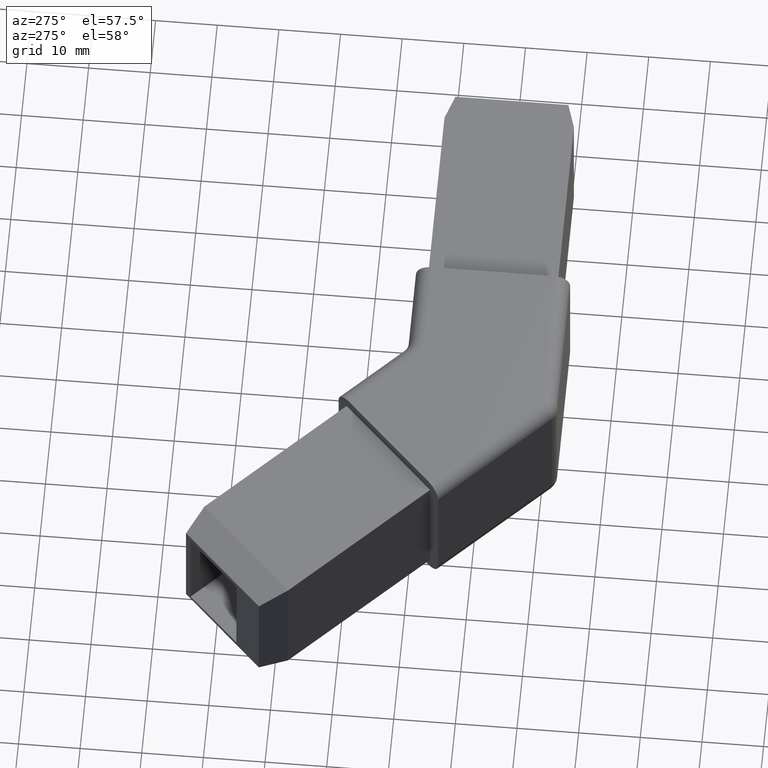
[diagram: clean part render]
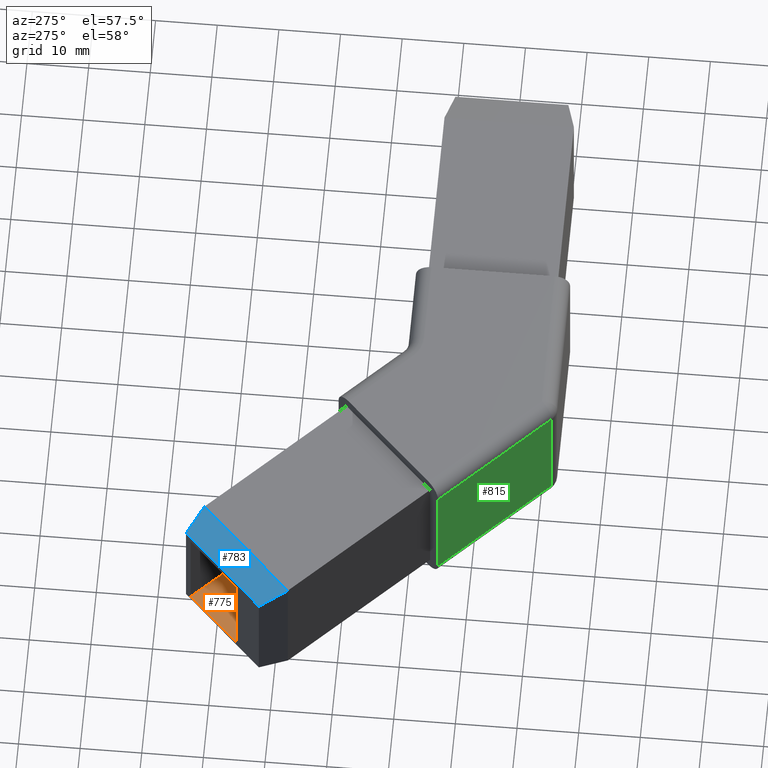
[diagram: same view with three faces highlighted in distinct colors, each labeled with its STEP entity id]
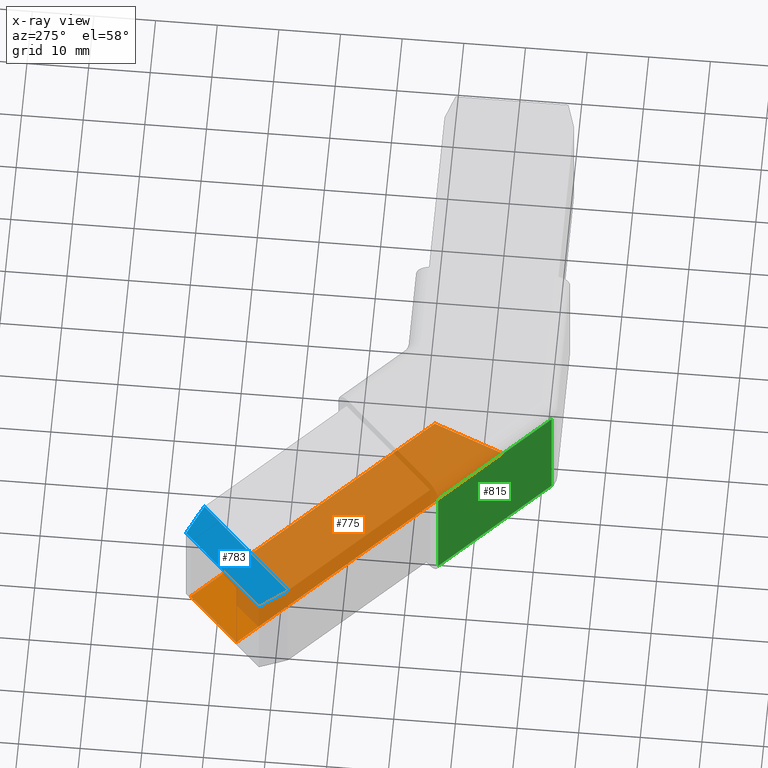
[diagram: x-ray of the same camera — body ghosted, the three highlighted faces saturated]
A machine part, auxiliary view with three faces highlighted in distinct colors.
The next image is the same camera in x-ray (body ghosted, the three faces saturated) — at least one of them is partly hidden behind the body in this view.
Their STEP definitions:

[orange] entity #775 — the highlighted planar face has unit normal (-0, -0, -1).
#57=FACE_OUTER_BOUND('',#105,.T.);
#105=EDGE_LOOP('',(#524,#525,#526,#527));
#157=LINE('',#1151,#247);
#162=LINE('',#1160,#252);
#163=LINE('',#1163,#253);
#164=LINE('',#1164,#254);
#247=VECTOR('',#917,10.);
#252=VECTOR('',#924,10.);
#253=VECTOR('',#927,10.);
#254=VECTOR('',#928,10.);
#337=VERTEX_POINT('',#1148);
#338=VERTEX_POINT('',#1150);
#340=VERTEX_POINT('',#1155);
#342=VERTEX_POINT('',#1162);
#405=EDGE_CURVE('',#338,#337,#157,.T.);
#410=EDGE_CURVE('',#340,#338,#162,.T.);
#411=EDGE_CURVE('',#340,#342,#163,.T.);
#412=EDGE_CURVE('',#337,#342,#164,.T.);
#524=ORIENTED_EDGE('',*,*,#411,.F.);
#525=ORIENTED_EDGE('',*,*,#410,.T.);
#526=ORIENTED_EDGE('',*,*,#405,.T.);
#527=ORIENTED_EDGE('',*,*,#412,.T.);
#741=PLANE('',#843);
#775=ADVANCED_FACE('',(#57),#741,.F.);
#843=AXIS2_PLACEMENT_3D('',#1161,#925,#926);
#917=DIRECTION('',(0.38268343236509,0.923879532511287,-1.11490470540647E-16));
#924=DIRECTION('',(0.707106781186547,-0.707106781186548,0.));
#925=DIRECTION('center_axis',(-8.53311118849878E-17,-8.53311118849877E-17,
-1.));
#926=DIRECTION('ref_axis',(-0.707106781186548,-0.707106781186547,1.20676415720126E-16));
#927=DIRECTION('',(0.707106781186548,0.707106781186547,-1.20676415720126E-16));
#928=DIRECTION('',(-0.707106781186547,0.707106781186548,0.));
#1148=CARTESIAN_POINT('',(3.31370849898476,7.99999999999998,3.99999999999999));
#1150=CARTESIAN_POINT('',(-1.44974746830584,-3.50000000000002,3.99999999999999));
#1151=CARTESIAN_POINT('',(1.29877739326627,3.13552599732699,3.99999999999999));
#1155=CARTESIAN_POINT('',(-41.240588799143,36.2908413308372,3.99999999999999));
#1160=CARTESIAN_POINT('',(-16.4918514576139,11.542103989308,3.99999999999999));
#1161=CARTESIAN_POINT('Origin',(-8.36012347396855,19.6738319729533,3.99999999999999));
#1162=CARTESIAN_POINT('',(-33.1088608154977,44.4225693144825,3.99999999999999));
#1163=CARTESIAN_POINT('',(-35.9372879402439,41.5941421897363,3.99999999999999));
#1164=CARTESIAN_POINT('',(-8.36012347396855,19.6738319729533,3.99999999999999));

[blue] entity #783 — the highlighted planar face has unit normal (-0.183, 0.183, 0.9659).
#65=FACE_OUTER_BOUND('',#114,.T.);
#114=EDGE_LOOP('',(#563,#564,#565,#566));
#177=LINE('',#1191,#267);
#181=LINE('',#1199,#271);
#184=LINE('',#1205,#274);
#185=LINE('',#1206,#275);
#267=VECTOR('',#953,10.);
#271=VECTOR('',#959,10.);
#274=VECTOR('',#964,10.);
#275=VECTOR('',#965,10.);
#349=VERTEX_POINT('',#1189);
#350=VERTEX_POINT('',#1190);
#353=VERTEX_POINT('',#1198);
#355=VERTEX_POINT('',#1204);
#425=EDGE_CURVE('',#349,#350,#177,.T.);
#429=EDGE_CURVE('',#353,#350,#181,.T.);
#432=EDGE_CURVE('',#349,#355,#184,.T.);
#433=EDGE_CURVE('',#353,#355,#185,.T.);
#563=ORIENTED_EDGE('',*,*,#425,.F.);
#564=ORIENTED_EDGE('',*,*,#432,.T.);
#565=ORIENTED_EDGE('',*,*,#433,.F.);
#566=ORIENTED_EDGE('',*,*,#429,.T.);
#749=PLANE('',#851);
#783=ADVANCED_FACE('',(#65),#749,.T.);
#851=AXIS2_PLACEMENT_3D('',#1203,#962,#963);
#953=DIRECTION('',(-0.484050172943188,0.838399492950102,-0.250562807085731));
#959=DIRECTION('',(-0.707106781186548,-0.707106781186547,0.));
#962=DIRECTION('center_axis',(-0.183012701892219,0.183012701892219,0.965925826289068));
#963=DIRECTION('ref_axis',(0.982520050848698,0.,0.186156787897385));
#964=DIRECTION('',(0.707106781186548,0.707106781186547,0.));
#965=DIRECTION('',(0.838399492950101,-0.48405017294319,0.250562807085731));
#1189=CARTESIAN_POINT('',(-42.6548023615161,27.8055599565986,23.));
#1190=CARTESIAN_POINT('',(-45.2429928125413,32.2884373174389,21.6602540378444));
#1191=CARTESIAN_POINT('',(-45.1411442486272,32.1120304300617,21.712974733959));
#1198=CARTESIAN_POINT('',(-32.2884373174388,45.2429928125413,21.6602540378444));
#1199=CARTESIAN_POINT('',(-42.4780256662194,35.0534044637607,21.6602540378444));
#1203=CARTESIAN_POINT('Origin',(-40.7102587132531,33.2856375107944,22.3301270189222));
#1204=CARTESIAN_POINT('',(-27.8055599565986,42.6548023615161,23.));
#1205=CARTESIAN_POINT('',(-38.9424917602867,31.517870557828,23.));
#1206=CARTESIAN_POINT('',(-32.1120304300616,45.1411442486272,21.712974733959));

[green] entity #815 — the highlighted planar face has unit normal (-0.7071, -0.7071, 0).
#97=FACE_OUTER_BOUND('',#149,.T.);
#149=EDGE_LOOP('',(#715,#716,#717,#718));
#228=LINE('',#1322,#318);
#239=LINE('',#1356,#329);
#240=LINE('',#1360,#330);
#243=LINE('',#1365,#333);
#318=VECTOR('',#1078,10.);
#329=VECTOR('',#1119,10.);
#330=VECTOR('',#1126,10.);
#333=VECTOR('',#1131,10.);
#392=VERTEX_POINT('',#1319);
#393=VERTEX_POINT('',#1321);
#400=VERTEX_POINT('',#1352);
#401=VERTEX_POINT('',#1354);
#489=EDGE_CURVE('',#392,#393,#228,.T.);
#508=EDGE_CURVE('',#401,#400,#239,.T.);
#510=EDGE_CURVE('',#400,#392,#240,.T.);
#513=EDGE_CURVE('',#401,#393,#243,.T.);
#715=ORIENTED_EDGE('',*,*,#489,.F.);
#716=ORIENTED_EDGE('',*,*,#510,.F.);
#717=ORIENTED_EDGE('',*,*,#508,.F.);
#718=ORIENTED_EDGE('',*,*,#513,.T.);
#768=PLANE('',#905);
#815=ADVANCED_FACE('',(#97),#768,.T.);
#905=AXIS2_PLACEMENT_3D('',#1364,#1129,#1130);
#1078=DIRECTION('',(0.707106781186547,-0.707106781186548,0.));
#1119=DIRECTION('',(-0.707106781186547,0.707106781186548,0.));
#1126=DIRECTION('',(0.,0.,1.));
#1129=DIRECTION('center_axis',(-0.707106781186548,-0.707106781186547,0.));
#1130=DIRECTION('ref_axis',(0.707106781186547,-0.707106781186548,0.));
#1131=DIRECTION('',(0.,0.,1.));
#1319=CARTESIAN_POINT('',(-22.8558124882928,5.17814295862909,22.5));
#1321=CARTESIAN_POINT('',(-5.90990257669733,-11.7677669529664,22.5));
#1322=CARTESIAN_POINT('',(-16.2977511692541,-1.37991836040963,22.5));
#1352=CARTESIAN_POINT('',(-22.8558124882928,5.17814295862909,2.5));
#1354=CARTESIAN_POINT('',(-5.90990257669733,-11.7677669529664,2.5));
#1356=CARTESIAN_POINT('',(-16.2977511692541,-1.37991836040963,2.5));
#1360=CARTESIAN_POINT('',(-22.8558124882928,5.17814295862909,0.));
#1364=CARTESIAN_POINT('Origin',(-22.8558124882928,5.17814295862909,0.));
#1365=CARTESIAN_POINT('',(-5.90990257669733,-11.7677669529664,0.));